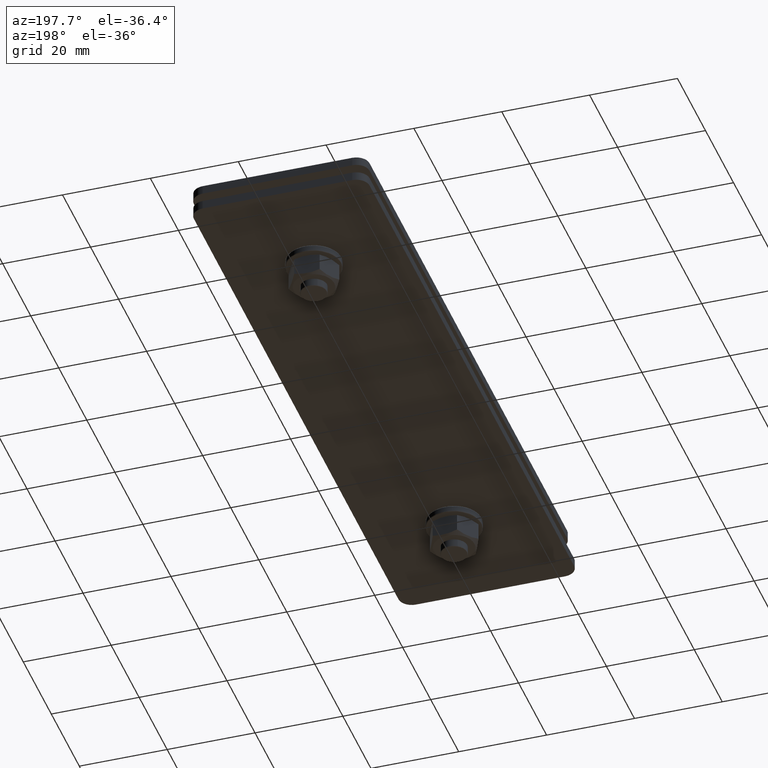
[diagram: clean part render]
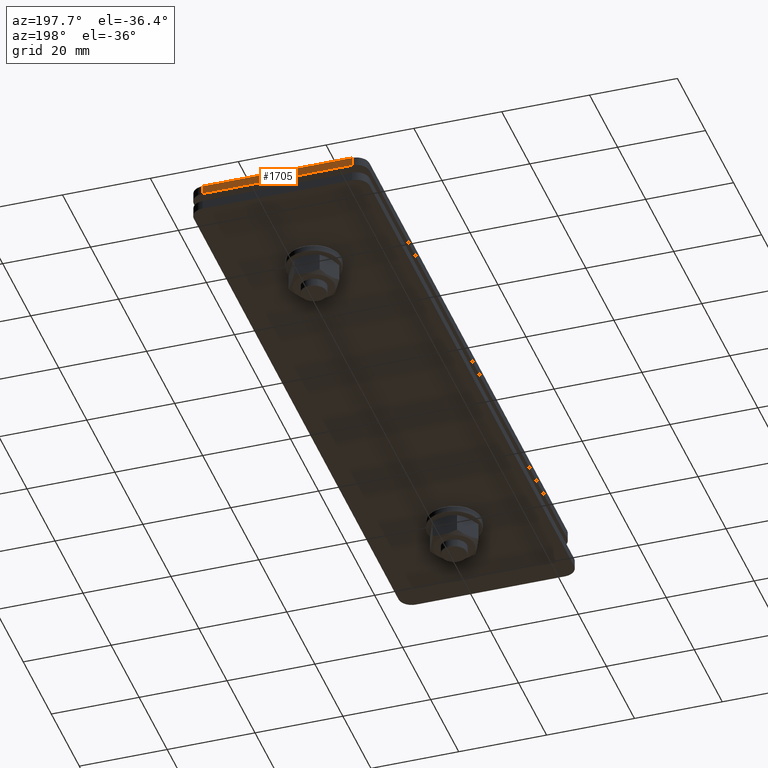
[diagram: same view with one face highlighted and labeled with its STEP entity id]
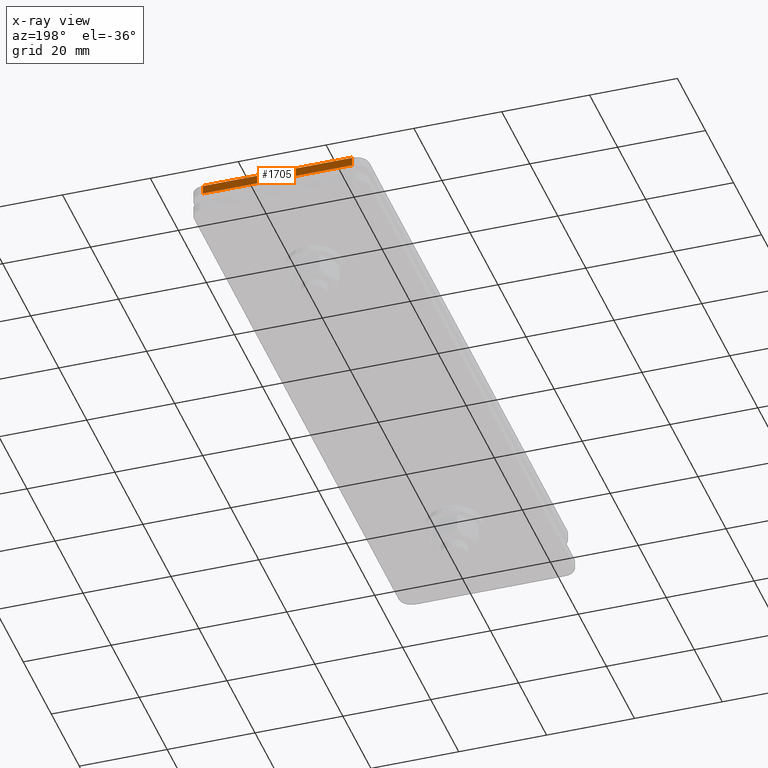
[diagram: x-ray of the same camera — body ghosted, the highlighted face saturated]
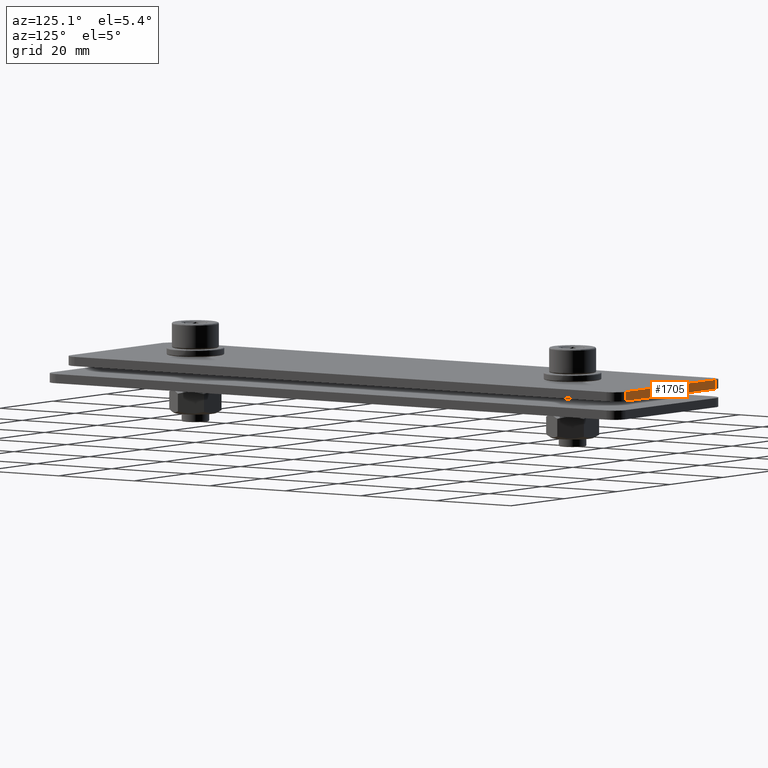
[diagram: same view with one face highlighted and labeled with its STEP entity id]
A machine part, auxiliary view. The second image highlights one B-rep face of the part: STEP entity #1705.
The next image is the same camera in x-ray: the body ghosted, the highlighted face saturated — about 0% of this face is hidden behind the body in this view.
A second angle (auxiliary view) of the same face is appended — the face is thin or edge-on in the first view.
In plain terms, the highlighted planar face has unit normal (0, 1, 0).
Its self-contained STEP definition (entity closure, byte-faithful):
#6 = VERTEX_POINT ( 'NONE', #1935 ) ;
#187 = VECTOR ( 'NONE', #3293, 1000.000000000000000 ) ;
#211 = CARTESIAN_POINT ( 'NONE',  ( -6.938893903907228378E-15, 152.0000000000000000, 1.999999999999998224 ) ) ;
#245 = ORIENTED_EDGE ( 'NONE', *, *, #1322, .T. ) ;
#429 = DIRECTION ( 'NONE',  ( 1.110223024625156540E-16, 0.000000000000000000, 1.000000000000000000 ) ) ;
#480 = ORIENTED_EDGE ( 'NONE', *, *, #3261, .T. ) ;
#519 = CARTESIAN_POINT ( 'NONE',  ( -6.938893903907228378E-15, 152.0000000000000000, 1.999999999999998224 ) ) ;
#533 = CARTESIAN_POINT ( 'NONE',  ( -37.00000000000001421, 152.0000000000000000, 2.000000000000001776 ) ) ;
#675 = CARTESIAN_POINT ( 'NONE',  ( -3.000000000000009770, 152.0000000000000000, 4.000000000000000000 ) ) ;
#999 = VERTEX_POINT ( 'NONE', #1329 ) ;
#1164 = AXIS2_PLACEMENT_3D ( 'NONE', #519, #3492, #2599 ) ;
#1322 = EDGE_CURVE ( 'NONE', #999, #2256, #3603, .T. ) ;
#1329 = CARTESIAN_POINT ( 'NONE',  ( -37.00000000000001421, 152.0000000000000000, 4.000000000000003553 ) ) ;
#1418 = VECTOR ( 'NONE', #2042, 1000.000000000000000 ) ;
#1698 = FACE_OUTER_BOUND ( 'NONE', #2904, .T. ) ;
#1705 = ADVANCED_FACE ( 'NONE', ( #1698 ), #1969, .T. ) ;
#1859 = VECTOR ( 'NONE', #3176, 1000.000000000000000 ) ;
#1935 = CARTESIAN_POINT ( 'NONE',  ( -3.000000000000009770, 152.0000000000000000, 1.999999999999998224 ) ) ;
#1947 = LINE ( 'NONE', #2232, #2338 ) ;
#1969 = PLANE ( 'NONE',  #1164 ) ;
#2026 = EDGE_CURVE ( 'NONE', #6, #2256, #1947, .T. ) ;
#2042 = DIRECTION ( 'NONE',  ( 1.110223024625156540E-16, -0.000000000000000000, 1.000000000000000000 ) ) ;
#2110 = EDGE_CURVE ( 'NONE', #2278, #6, #2887, .T. ) ;
#2232 = CARTESIAN_POINT ( 'NONE',  ( -3.000000000000009770, 152.0000000000000284, 1.999999999999998224 ) ) ;
#2256 = VERTEX_POINT ( 'NONE', #675 ) ;
#2278 = VERTEX_POINT ( 'NONE', #3029 ) ;
#2338 = VECTOR ( 'NONE', #429, 1000.000000000000000 ) ;
#2599 = DIRECTION ( 'NONE',  ( -1.110223024625156540E-16, 0.000000000000000000, -1.000000000000000000 ) ) ;
#2771 = CARTESIAN_POINT ( 'NONE',  ( -6.938893903907228378E-15, 152.0000000000000000, 4.000000000000000000 ) ) ;
#2887 = LINE ( 'NONE', #211, #1859 ) ;
#2904 = EDGE_LOOP ( 'NONE', ( #245, #3069, #2970, #480 ) ) ;
#2970 = ORIENTED_EDGE ( 'NONE', *, *, #2110, .F. ) ;
#3029 = CARTESIAN_POINT ( 'NONE',  ( -37.00000000000001421, 152.0000000000000000, 2.000000000000001776 ) ) ;
#3069 = ORIENTED_EDGE ( 'NONE', *, *, #2026, .F. ) ;
#3176 = DIRECTION ( 'NONE',  ( 1.000000000000000000, -0.000000000000000000, -1.110223024625156540E-16 ) ) ;
#3261 = EDGE_CURVE ( 'NONE', #2278, #999, #3786, .T. ) ;
#3293 = DIRECTION ( 'NONE',  ( 1.000000000000000000, -0.000000000000000000, -1.110223024625156540E-16 ) ) ;
#3492 = DIRECTION ( 'NONE',  ( 0.000000000000000000, 1.000000000000000000, 0.000000000000000000 ) ) ;
#3603 = LINE ( 'NONE', #2771, #187 ) ;
#3786 = LINE ( 'NONE', #533, #1418 ) ;